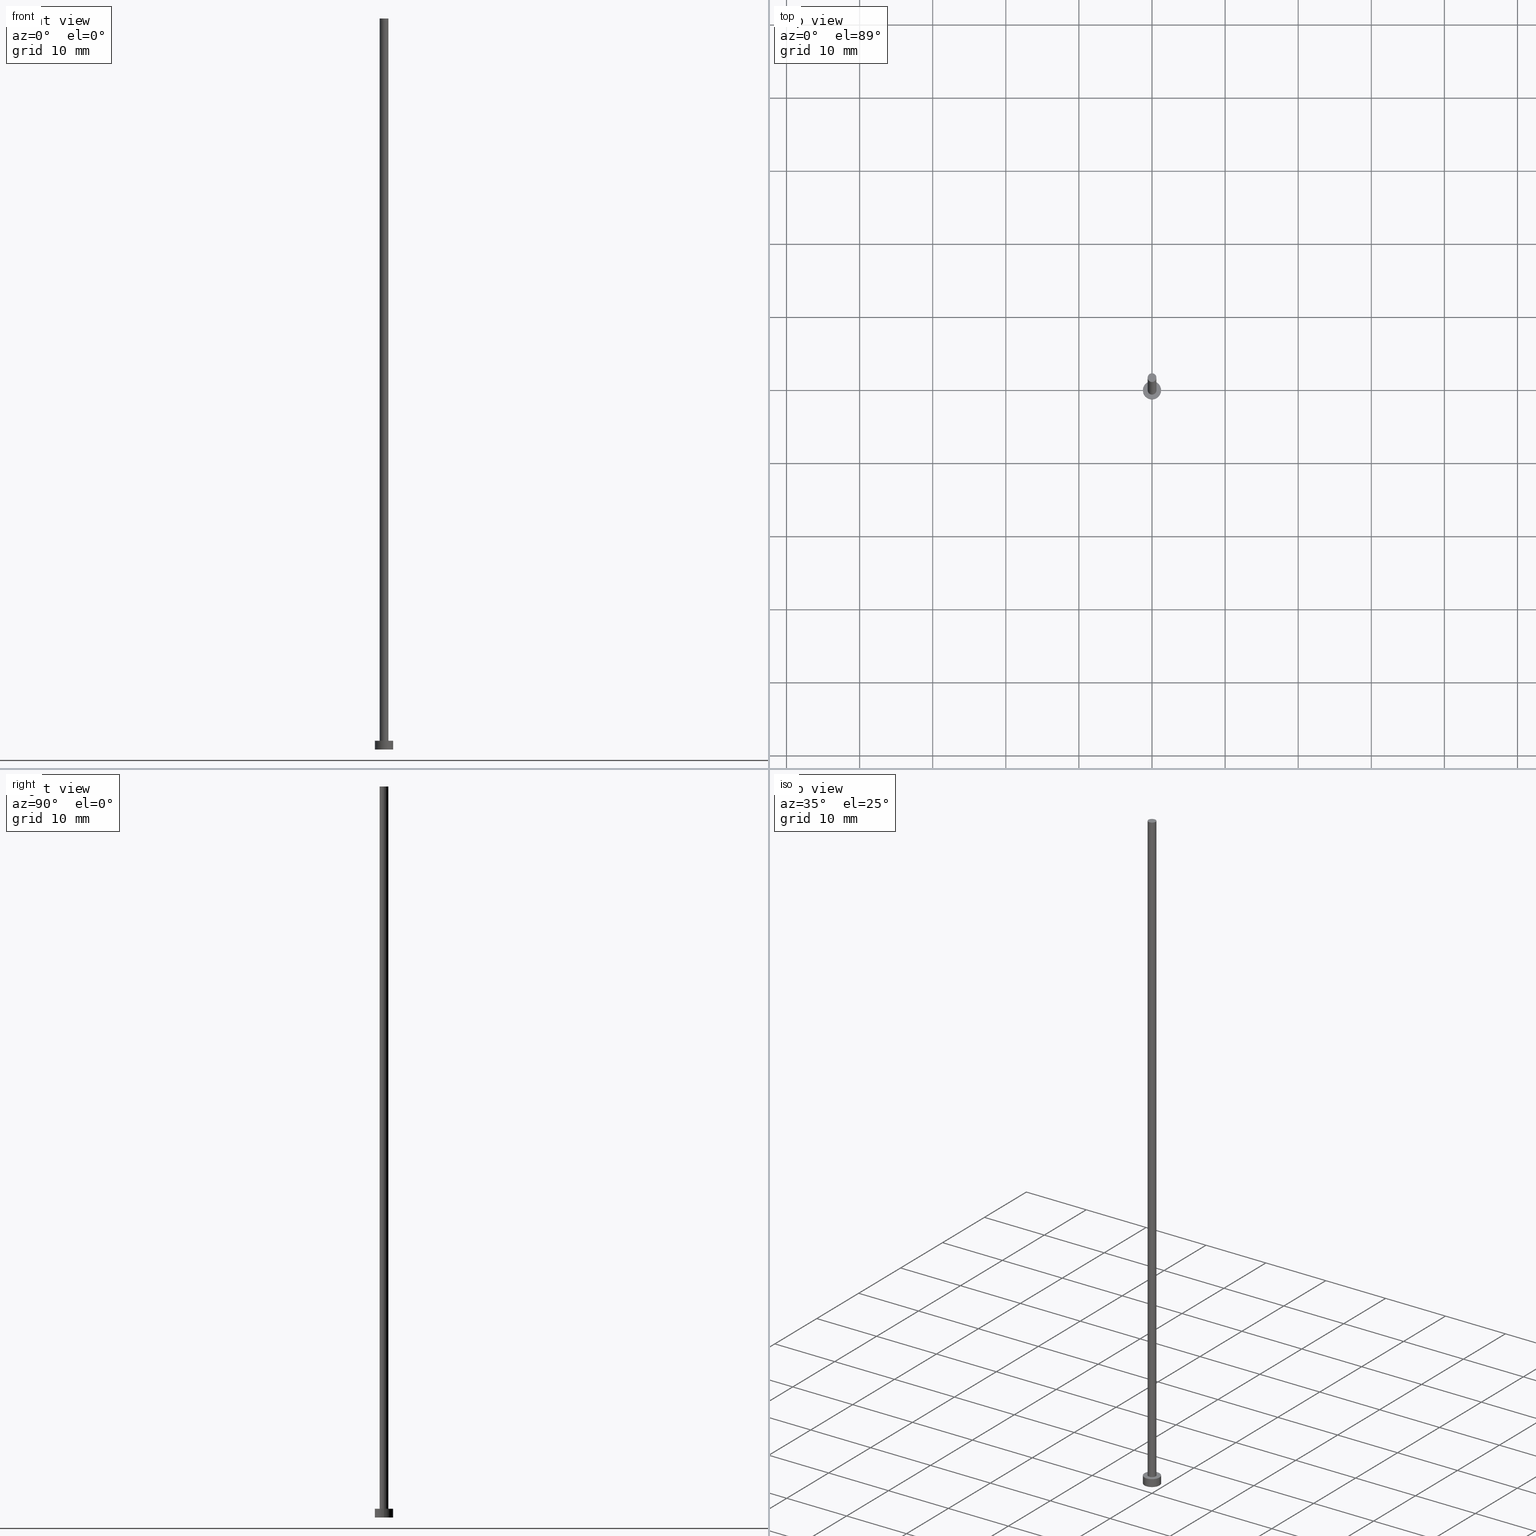
[diagram: canonical four-view strip — front | top / right | iso, engineering-drawing reading convention]
A machine part, canonical four-view strip (front | top / right | iso — engineering-drawing reading convention). The complete STEP part file that produces these views, byte-faithful:
ISO-10303-21;
HEADER;
FILE_DESCRIPTION (( 'STEP AP203' ),
    '1' );
FILE_NAME ('dd46.STEP',
    '2023-02-13T15:27:06',
    ( '' ),
    ( '' ),
    'SwSTEP 2.0',
    'SolidWorks 2019',
    '' );
FILE_SCHEMA (( 'CONFIG_CONTROL_DESIGN' ));
ENDSEC;

DATA;
#1 = APPLICATION_PROTOCOL_DEFINITION ( 'international standard', 'config_control_design', 1994, #155 ) ;
#2 = PERSON_AND_ORGANIZATION ( #152, #169 ) ;
#3 = AXIS2_PLACEMENT_3D ( 'NONE', #176, #193, #38 ) ;
#4 = CYLINDRICAL_SURFACE ( 'NONE', #241, 0.5999999999999999778 ) ;
#5 = CARTESIAN_POINT ( 'NONE',  ( 0.000000000000000000, 0.000000000000000000, 1.199999999999999956 ) ) ;
#6 = ORIENTED_EDGE ( 'NONE', *, *, #244, .T. ) ;
#7 = ORIENTED_EDGE ( 'NONE', *, *, #133, .T. ) ;
#8 = VERTEX_POINT ( 'NONE', #203 ) ;
#9 = ORIENTED_EDGE ( 'NONE', *, *, #90, .T. ) ;
#10 = ADVANCED_FACE ( 'NONE', ( #86 ), #184, .T. ) ;
#11 = CARTESIAN_POINT ( 'NONE',  ( 0.000000000000000000, 0.000000000000000000, 1.199999999999999956 ) ) ;
#12 = PLANE ( 'NONE',  #29 ) ;
#13 = FACE_OUTER_BOUND ( 'NONE', #196, .T. ) ;
#14 = FACE_OUTER_BOUND ( 'NONE', #181, .T. ) ;
#15 = SECURITY_CLASSIFICATION_LEVEL ( 'unclassified' ) ;
#16 = CIRCLE ( 'NONE', #99, 1.250000000000000000 ) ;
#17 = CC_DESIGN_APPROVAL ( #19, ( #180 ) ) ;
#18 = DIRECTION ( 'NONE',  ( 0.000000000000000000, 0.000000000000000000, 1.000000000000000000 ) ) ;
#19 = APPROVAL ( #233, 'NEUR�EN�' ) ;
#20 = AXIS2_PLACEMENT_3D ( 'NONE', #5, #77, #150 ) ;
#21 = CALENDAR_DATE ( 2023, 13, 2 ) ;
#22 = VERTEX_POINT ( 'NONE', #143 ) ;
#23 = EDGE_CURVE ( 'NONE', #216, #119, #121, .T. ) ;
#24 = VERTEX_POINT ( 'NONE', #125 ) ;
#25 = PRODUCT_RELATED_PRODUCT_CATEGORY ( 'detail', '', ( #219 ) ) ;
#26 = DIRECTION ( 'NONE',  ( -1.000000000000000000, 0.000000000000000000, 0.000000000000000000 ) ) ;
#27 = DESIGN_CONTEXT ( 'detailed design', #195, 'design' ) ;
#28 = DIRECTION ( 'NONE',  ( 0.000000000000000000, 0.000000000000000000, 1.000000000000000000 ) ) ;
#29 = AXIS2_PLACEMENT_3D ( 'NONE', #84, #206, #249 ) ;
#30 = APPROVAL_PERSON_ORGANIZATION ( #71, #106, #116 ) ;
#31 = PLANE ( 'NONE',  #139 ) ;
#32 = CARTESIAN_POINT ( 'NONE',  ( 0.000000000000000000, 0.000000000000000000, 0.000000000000000000 ) ) ;
#33 = ADVANCED_FACE ( 'NONE', ( #144, #164 ), #31, .T. ) ;
#34 = DIRECTION ( 'NONE',  ( 0.000000000000000000, 0.000000000000000000, 1.000000000000000000 ) ) ;
#35 = PERSON_AND_ORGANIZATION ( #152, #169 ) ;
#36 = CARTESIAN_POINT ( 'NONE',  ( 0.000000000000000000, 0.000000000000000000, 100.0000000000000000 ) ) ;
#37 = COORDINATED_UNIVERSAL_TIME_OFFSET ( 1, 0, .AHEAD. ) ;
#38 = DIRECTION ( 'NONE',  ( 1.000000000000000000, 0.000000000000000000, 0.000000000000000000 ) ) ;
#39 = CARTESIAN_POINT ( 'NONE',  ( -1.250000000000000000, 0.000000000000000000, 1.199999999999999956 ) ) ;
#40 = CALENDAR_DATE ( 2023, 13, 2 ) ;
#41 = APPLICATION_PROTOCOL_DEFINITION ( 'international standard', 'config_control_design', 1994, #195 ) ;
#42 = VERTEX_POINT ( 'NONE', #190 ) ;
#43 = DATE_AND_TIME ( #151, #112 ) ;
#44 = ORIENTED_EDGE ( 'NONE', *, *, #68, .F. ) ;
#45 = EDGE_CURVE ( 'NONE', #119, #42, #223, .T. ) ;
#46 = EDGE_LOOP ( 'NONE', ( #118, #218 ) ) ;
#47 = AXIS2_PLACEMENT_3D ( 'NONE', #168, #123, #243 ) ;
#48 = CARTESIAN_POINT ( 'NONE',  ( 0.000000000000000000, 0.000000000000000000, 1.199999999999999956 ) ) ;
#49 = ORIENTED_EDGE ( 'NONE', *, *, #179, .F. ) ;
#50 = DIRECTION ( 'NONE',  ( -0.000000000000000000, -0.000000000000000000, -1.000000000000000000 ) ) ;
#51 = DIRECTION ( 'NONE',  ( -0.000000000000000000, -0.000000000000000000, -1.000000000000000000 ) ) ;
#52 = ADVANCED_FACE ( 'NONE', ( #14 ), #65, .T. ) ;
#53 = LINE ( 'NONE', #131, #221 ) ;
#54 = APPROVAL_STATUS ( 'not_yet_approved' ) ;
#55 = DATE_TIME_ROLE ( 'creation_date' ) ;
#56 = DIRECTION ( 'NONE',  ( 0.000000000000000000, 0.000000000000000000, 1.000000000000000000 ) ) ;
#57 = ORIENTED_EDGE ( 'NONE', *, *, #167, .F. ) ;
#58 = PRODUCT_DEFINITION ( 'NEZN�M�', '', #180, #27 ) ;
#59 = ORIENTED_EDGE ( 'NONE', *, *, #23, .F. ) ;
#60 = PRODUCT_DEFINITION_SHAPE ( 'NONE', 'NONE',  #58 ) ;
#61 = CYLINDRICAL_SURFACE ( 'NONE', #126, 0.5999999999999999778 ) ;
#62 = CC_DESIGN_APPROVAL ( #248, ( #58 ) ) ;
#63 = EDGE_LOOP ( 'NONE', ( #160, #224, #237, #124 ) ) ;
#64 = CARTESIAN_POINT ( 'NONE',  ( 0.000000000000000000, 0.000000000000000000, 1.199999999999999956 ) ) ;
#65 = PLANE ( 'NONE',  #47 ) ;
#66 = AXIS2_PLACEMENT_3D ( 'NONE', #211, #56, #251 ) ;
#67 = LOCAL_TIME ( 16, 27, 6.000000000000000000, #37 ) ;
#68 = EDGE_CURVE ( 'NONE', #22, #24, #204, .T. ) ;
#69 = CARTESIAN_POINT ( 'NONE',  ( 0.000000000000000000, 0.000000000000000000, 1.199999999999999956 ) ) ;
#70 = FACE_OUTER_BOUND ( 'NONE', #63, .T. ) ;
#71 = PERSON_AND_ORGANIZATION ( #152, #169 ) ;
#72 = COORDINATED_UNIVERSAL_TIME_OFFSET ( 1, 0, .AHEAD. ) ;
#73 = AXIS2_PLACEMENT_3D ( 'NONE', #48, #145, #222 ) ;
#74 = LOCAL_TIME ( 16, 27, 6.000000000000000000, #212 ) ;
#75 = ADVANCED_FACE ( 'NONE', ( #13 ), #61, .T. ) ;
#76 = DIRECTION ( 'NONE',  ( -1.000000000000000000, 0.000000000000000000, 0.000000000000000000 ) ) ;
#77 = DIRECTION ( 'NONE',  ( 0.000000000000000000, 0.000000000000000000, 1.000000000000000000 ) ) ;
#78 = EDGE_LOOP ( 'NONE', ( #98, #57 ) ) ;
#79 = ORIENTED_EDGE ( 'NONE', *, *, #90, .F. ) ;
#80 =( GEOMETRIC_REPRESENTATION_CONTEXT ( 3 ) GLOBAL_UNCERTAINTY_ASSIGNED_CONTEXT ( ( #101 ) ) GLOBAL_UNIT_ASSIGNED_CONTEXT ( ( #134, #215, #230 ) ) REPRESENTATION_CONTEXT ( 'NONE', 'WORKASPACE' ) );
#81 = ORIENTED_EDGE ( 'NONE', *, *, #167, .T. ) ;
#82 = CARTESIAN_POINT ( 'NONE',  ( 0.000000000000000000, 0.000000000000000000, 100.0000000000000000 ) ) ;
#83 = DIRECTION ( 'NONE',  ( 0.000000000000000000, 0.000000000000000000, 1.000000000000000000 ) ) ;
#84 = CARTESIAN_POINT ( 'NONE',  ( 0.000000000000000000, 0.000000000000000000, 0.000000000000000000 ) ) ;
#85 = DIRECTION ( 'NONE',  ( -0.000000000000000000, -0.000000000000000000, -1.000000000000000000 ) ) ;
#86 = FACE_OUTER_BOUND ( 'NONE', #238, .T. ) ;
#87 = COORDINATED_UNIVERSAL_TIME_OFFSET ( 1, 0, .AHEAD. ) ;
#88 = AXIS2_PLACEMENT_3D ( 'NONE', #170, #18, #232 ) ;
#89 = PERSON_AND_ORGANIZATION ( #152, #169 ) ;
#90 = EDGE_CURVE ( 'NONE', #22, #104, #110, .T. ) ;
#91 = COORDINATED_UNIVERSAL_TIME_OFFSET ( 1, 0, .AHEAD. ) ;
#92 = DATE_AND_TIME ( #111, #74 ) ;
#93 = CC_DESIGN_PERSON_AND_ORGANIZATION_ASSIGNMENT ( #254, #177, ( #58 ) ) ;
#94 = LINE ( 'NONE', #39, #246 ) ;
#95 = VECTOR ( 'NONE', #185, 1000.000000000000000 ) ;
#96 = CC_DESIGN_APPROVAL ( #106, ( #186 ) ) ;
#97 = APPROVAL_DATE_TIME ( #174, #248 ) ;
#98 = ORIENTED_EDGE ( 'NONE', *, *, #122, .F. ) ;
#99 = AXIS2_PLACEMENT_3D ( 'NONE', #32, #83, #165 ) ;
#100 = EDGE_LOOP ( 'NONE', ( #79, #137, #81, #49 ) ) ;
#101 = UNCERTAINTY_MEASURE_WITH_UNIT (LENGTH_MEASURE( 1.000000000000000082E-05 ), #134, 'distance_accuracy_value', 'NONE');
#102 = DIRECTION ( 'NONE',  ( 1.000000000000000000, 0.000000000000000000, 0.000000000000000000 ) ) ;
#103 = CARTESIAN_POINT ( 'NONE',  ( 1.250000000000000000, 1.530808498934191571E-16, 1.199999999999999956 ) ) ;
#104 = VERTEX_POINT ( 'NONE', #227 ) ;
#105 = CYLINDRICAL_SURFACE ( 'NONE', #213, 1.250000000000000000 ) ;
#106 = APPROVAL ( #54, 'NEUR�EN�' ) ;
#107 = CIRCLE ( 'NONE', #3, 0.5999999999999999778 ) ;
#108 = CARTESIAN_POINT ( 'NONE',  ( 0.000000000000000000, 0.000000000000000000, 100.0000000000000000 ) ) ;
#109 = DATE_AND_TIME ( #173, #67 ) ;
#110 = CIRCLE ( 'NONE', #73, 1.250000000000000000 ) ;
#111 = CALENDAR_DATE ( 2023, 13, 2 ) ;
#112 = LOCAL_TIME ( 16, 27, 6.000000000000000000, #72 ) ;
#113 = PERSON_AND_ORGANIZATION_ROLE ( 'design_owner' ) ;
#114 = APPROVAL_DATE_TIME ( #92, #106 ) ;
#115 = MECHANICAL_CONTEXT ( 'NONE', #155, 'mechanical' ) ;
#116 = APPROVAL_ROLE ( '' ) ;
#117 = APPROVAL_STATUS ( 'not_yet_approved' ) ;
#118 = ORIENTED_EDGE ( 'NONE', *, *, #133, .F. ) ;
#119 = VERTEX_POINT ( 'NONE', #166 ) ;
#120 = ADVANCED_FACE ( 'NONE', ( #127 ), #12, .F. ) ;
#121 = CIRCLE ( 'NONE', #250, 0.5999999999999999778 ) ;
#122 = EDGE_CURVE ( 'NONE', #8, #24, #16, .T. ) ;
#123 = DIRECTION ( 'NONE',  ( 0.000000000000000000, 0.000000000000000000, 1.000000000000000000 ) ) ;
#124 = ORIENTED_EDGE ( 'NONE', *, *, #149, .F. ) ;
#125 = CARTESIAN_POINT ( 'NONE',  ( 1.250000000000000000, 1.530808498934191571E-16, 0.000000000000000000 ) ) ;
#126 = AXIS2_PLACEMENT_3D ( 'NONE', #108, #51, #142 ) ;
#127 = FACE_OUTER_BOUND ( 'NONE', #78, .T. ) ;
#128 = AXIS2_PLACEMENT_3D ( 'NONE', #234, #138, #136 ) ;
#129 = CIRCLE ( 'NONE', #66, 1.250000000000000000 ) ;
#130 = APPROVAL_PERSON_ORGANIZATION ( #172, #248, #197 ) ;
#131 = CARTESIAN_POINT ( 'NONE',  ( -0.5999999999999999778, 0.000000000000000000, 100.0000000000000000 ) ) ;
#132 = PERSON_AND_ORGANIZATION ( #152, #169 ) ;
#133 = EDGE_CURVE ( 'NONE', #198, #42, #158, .T. ) ;
#134 =( LENGTH_UNIT ( ) NAMED_UNIT ( * ) SI_UNIT ( .MILLI., .METRE. ) );
#135 = APPROVAL_DATE_TIME ( #109, #19 ) ;
#136 = DIRECTION ( 'NONE',  ( 1.000000000000000000, 0.000000000000000000, 0.000000000000000000 ) ) ;
#137 = ORIENTED_EDGE ( 'NONE', *, *, #68, .T. ) ;
#138 = DIRECTION ( 'NONE',  ( 0.000000000000000000, 0.000000000000000000, 1.000000000000000000 ) ) ;
#139 = AXIS2_PLACEMENT_3D ( 'NONE', #69, #34, #242 ) ;
#140 = ADVANCED_FACE ( 'NONE', ( #245 ), #105, .T. ) ;
#141 = ORIENTED_EDGE ( 'NONE', *, *, #45, .F. ) ;
#142 = DIRECTION ( 'NONE',  ( -1.000000000000000000, 0.000000000000000000, 0.000000000000000000 ) ) ;
#143 = CARTESIAN_POINT ( 'NONE',  ( 1.250000000000000000, 1.530808498934191571E-16, 1.199999999999999956 ) ) ;
#144 = FACE_BOUND ( 'NONE', #46, .T. ) ;
#145 = DIRECTION ( 'NONE',  ( 0.000000000000000000, 0.000000000000000000, 1.000000000000000000 ) ) ;
#146 = AXIS2_PLACEMENT_3D ( 'NONE', #64, #202, #102 ) ;
#147 = LOCAL_TIME ( 16, 27, 6.000000000000000000, #87 ) ;
#148 = CARTESIAN_POINT ( 'NONE',  ( 0.5999999999999999778, 7.347880794884117764E-17, 100.0000000000000000 ) ) ;
#149 = EDGE_CURVE ( 'NONE', #216, #198, #53, .T. ) ;
#150 = DIRECTION ( 'NONE',  ( 1.000000000000000000, 0.000000000000000000, 0.000000000000000000 ) ) ;
#151 = CALENDAR_DATE ( 2023, 13, 2 ) ;
#152 = PERSON ( 'NEUR�EN�', 'NEUR�EN�', 'NEUR�EN�', ('NEUR�EN�'), ('NEUR�EN�'), ('NEUR�EN�') ) ;
#153 = PERSON_AND_ORGANIZATION ( #152, #169 ) ;
#154 = CLOSED_SHELL ( 'NONE', ( #217, #140, #10, #33, #120, #75, #52 ) ) ;
#155 = APPLICATION_CONTEXT ( 'configuration controlled 3d designs of mechanical parts and assemblies' ) ;
#156 = CARTESIAN_POINT ( 'NONE',  ( -0.5999999999999999778, 0.000000000000000000, 100.0000000000000000 ) ) ;
#157 = ORIENTED_EDGE ( 'NONE', *, *, #122, .T. ) ;
#158 = CIRCLE ( 'NONE', #146, 0.5999999999999999778 ) ;
#159 = CC_DESIGN_SECURITY_CLASSIFICATION ( #186, ( #180 ) ) ;
#160 = ORIENTED_EDGE ( 'NONE', *, *, #255, .F. ) ;
#161 = ORIENTED_EDGE ( 'NONE', *, *, #23, .T. ) ;
#162 = CC_DESIGN_PERSON_AND_ORGANIZATION_ASSIGNMENT ( #2, #231, ( #180 ) ) ;
#163 = VECTOR ( 'NONE', #50, 1000.000000000000000 ) ;
#164 = FACE_OUTER_BOUND ( 'NONE', #201, .T. ) ;
#165 = DIRECTION ( 'NONE',  ( 1.000000000000000000, 0.000000000000000000, 0.000000000000000000 ) ) ;
#166 = CARTESIAN_POINT ( 'NONE',  ( 0.5999999999999999778, 7.347880794884117764E-17, 100.0000000000000000 ) ) ;
#167 = EDGE_CURVE ( 'NONE', #24, #8, #129, .T. ) ;
#168 = CARTESIAN_POINT ( 'NONE',  ( 0.000000000000000000, 0.000000000000000000, 100.0000000000000000 ) ) ;
#169 = ORGANIZATION ( 'NEUR�EN�', 'NEUR�EN�', '' ) ;
#170 = CARTESIAN_POINT ( 'NONE',  ( 0.000000000000000000, 0.000000000000000000, 0.000000000000000000 ) ) ;
#171 = DATE_AND_TIME ( #40, #147 ) ;
#172 = PERSON_AND_ORGANIZATION ( #152, #169 ) ;
#173 = CALENDAR_DATE ( 2023, 13, 2 ) ;
#174 = DATE_AND_TIME ( #21, #228 ) ;
#175 = DATE_TIME_ROLE ( 'classification_date' ) ;
#176 = CARTESIAN_POINT ( 'NONE',  ( 0.000000000000000000, 0.000000000000000000, 1.199999999999999956 ) ) ;
#177 = PERSON_AND_ORGANIZATION_ROLE ( 'creator' ) ;
#178 = ORIENTED_EDGE ( 'NONE', *, *, #149, .T. ) ;
#179 = EDGE_CURVE ( 'NONE', #104, #8, #94, .T. ) ;
#180 = PRODUCT_DEFINITION_FORMATION_WITH_SPECIFIED_SOURCE ( 'LIBOVOLN�', '', #219, .NOT_KNOWN. ) ;
#181 = EDGE_LOOP ( 'NONE', ( #161, #200 ) ) ;
#182 = ORIENTED_EDGE ( 'NONE', *, *, #179, .T. ) ;
#183 = CC_DESIGN_DATE_AND_TIME_ASSIGNMENT ( #43, #55, ( #58 ) ) ;
#184 = CYLINDRICAL_SURFACE ( 'NONE', #226, 1.250000000000000000 ) ;
#185 = DIRECTION ( 'NONE',  ( -0.000000000000000000, -0.000000000000000000, -1.000000000000000000 ) ) ;
#186 = SECURITY_CLASSIFICATION ( '', '', #15 ) ;
#187 = CC_DESIGN_PERSON_AND_ORGANIZATION_ASSIGNMENT ( #89, #113, ( #219 ) ) ;
#188 = DIRECTION ( 'NONE',  ( 1.000000000000000000, 0.000000000000000000, 0.000000000000000000 ) ) ;
#189 = CARTESIAN_POINT ( 'NONE',  ( 0.000000000000000000, 0.000000000000000000, 1.199999999999999956 ) ) ;
#190 = CARTESIAN_POINT ( 'NONE',  ( 0.5999999999999999778, 7.347880794884117764E-17, 1.199999999999999956 ) ) ;
#191 = PERSON_AND_ORGANIZATION_ROLE ( 'creator' ) ;
#192 = SHAPE_DEFINITION_REPRESENTATION ( #60, #247 ) ;
#193 = DIRECTION ( 'NONE',  ( 0.000000000000000000, 0.000000000000000000, 1.000000000000000000 ) ) ;
#194 = MANIFOLD_SOLID_BREP ( 'P�idat vysunut�m3', #154 ) ;
#195 = APPLICATION_CONTEXT ( 'configuration controlled 3d designs of mechanical parts and assemblies' ) ;
#196 = EDGE_LOOP ( 'NONE', ( #141, #59, #178, #7 ) ) ;
#197 = APPROVAL_ROLE ( '' ) ;
#198 = VERTEX_POINT ( 'NONE', #235 ) ;
#199 = DIRECTION ( 'NONE',  ( -0.000000000000000000, -0.000000000000000000, -1.000000000000000000 ) ) ;
#200 = ORIENTED_EDGE ( 'NONE', *, *, #255, .T. ) ;
#201 = EDGE_LOOP ( 'NONE', ( #6, #9 ) ) ;
#202 = DIRECTION ( 'NONE',  ( 0.000000000000000000, 0.000000000000000000, 1.000000000000000000 ) ) ;
#203 = CARTESIAN_POINT ( 'NONE',  ( -1.250000000000000000, 0.000000000000000000, 0.000000000000000000 ) ) ;
#204 = LINE ( 'NONE', #103, #95 ) ;
#205 = CC_DESIGN_DATE_AND_TIME_ASSIGNMENT ( #171, #175, ( #186 ) ) ;
#206 = DIRECTION ( 'NONE',  ( 0.000000000000000000, 0.000000000000000000, 1.000000000000000000 ) ) ;
#207 = CIRCLE ( 'NONE', #20, 1.250000000000000000 ) ;
#208 = APPROVAL_PERSON_ORGANIZATION ( #153, #19, #210 ) ;
#209 = DIRECTION ( 'NONE',  ( -0.000000000000000000, -0.000000000000000000, -1.000000000000000000 ) ) ;
#210 = APPROVAL_ROLE ( '' ) ;
#211 = CARTESIAN_POINT ( 'NONE',  ( 0.000000000000000000, 0.000000000000000000, 0.000000000000000000 ) ) ;
#212 = COORDINATED_UNIVERSAL_TIME_OFFSET ( 1, 0, .AHEAD. ) ;
#213 = AXIS2_PLACEMENT_3D ( 'NONE', #189, #85, #229 ) ;
#214 = EDGE_CURVE ( 'NONE', #42, #198, #107, .T. ) ;
#215 =( NAMED_UNIT ( * ) PLANE_ANGLE_UNIT ( ) SI_UNIT ( $, .RADIAN. ) );
#216 = VERTEX_POINT ( 'NONE', #156 ) ;
#217 = ADVANCED_FACE ( 'NONE', ( #70 ), #4, .T. ) ;
#218 = ORIENTED_EDGE ( 'NONE', *, *, #214, .F. ) ;
#219 = PRODUCT ( 'dd46', 'dd46', '', ( #115 ) ) ;
#220 = ORIENTED_EDGE ( 'NONE', *, *, #244, .F. ) ;
#221 = VECTOR ( 'NONE', #209, 1000.000000000000000 ) ;
#222 = DIRECTION ( 'NONE',  ( 1.000000000000000000, 0.000000000000000000, 0.000000000000000000 ) ) ;
#223 = LINE ( 'NONE', #148, #163 ) ;
#224 = ORIENTED_EDGE ( 'NONE', *, *, #45, .T. ) ;
#225 = CC_DESIGN_PERSON_AND_ORGANIZATION_ASSIGNMENT ( #132, #252, ( #186 ) ) ;
#226 = AXIS2_PLACEMENT_3D ( 'NONE', #11, #239, #26 ) ;
#227 = CARTESIAN_POINT ( 'NONE',  ( -1.250000000000000000, 0.000000000000000000, 1.199999999999999956 ) ) ;
#228 = LOCAL_TIME ( 16, 27, 6.000000000000000000, #91 ) ;
#229 = DIRECTION ( 'NONE',  ( -1.000000000000000000, 0.000000000000000000, 0.000000000000000000 ) ) ;
#230 =( NAMED_UNIT ( * ) SI_UNIT ( $, .STERADIAN. ) SOLID_ANGLE_UNIT ( ) );
#231 = PERSON_AND_ORGANIZATION_ROLE ( 'design_supplier' ) ;
#232 = DIRECTION ( 'NONE',  ( 1.000000000000000000, 0.000000000000000000, 0.000000000000000000 ) ) ;
#233 = APPROVAL_STATUS ( 'not_yet_approved' ) ;
#234 = CARTESIAN_POINT ( 'NONE',  ( 0.000000000000000000, 0.000000000000000000, 100.0000000000000000 ) ) ;
#235 = CARTESIAN_POINT ( 'NONE',  ( -0.5999999999999999778, 0.000000000000000000, 1.199999999999999956 ) ) ;
#236 = DIRECTION ( 'NONE',  ( -0.000000000000000000, -0.000000000000000000, -1.000000000000000000 ) ) ;
#237 = ORIENTED_EDGE ( 'NONE', *, *, #214, .T. ) ;
#238 = EDGE_LOOP ( 'NONE', ( #44, #220, #182, #157 ) ) ;
#239 = DIRECTION ( 'NONE',  ( -0.000000000000000000, -0.000000000000000000, -1.000000000000000000 ) ) ;
#240 = CIRCLE ( 'NONE', #128, 0.5999999999999999778 ) ;
#241 = AXIS2_PLACEMENT_3D ( 'NONE', #36, #199, #76 ) ;
#242 = DIRECTION ( 'NONE',  ( 1.000000000000000000, 0.000000000000000000, -0.000000000000000000 ) ) ;
#243 = DIRECTION ( 'NONE',  ( 1.000000000000000000, 0.000000000000000000, -0.000000000000000000 ) ) ;
#244 = EDGE_CURVE ( 'NONE', #104, #22, #207, .T. ) ;
#245 = FACE_OUTER_BOUND ( 'NONE', #100, .T. ) ;
#246 = VECTOR ( 'NONE', #236, 1000.000000000000000 ) ;
#247 = ADVANCED_BREP_SHAPE_REPRESENTATION ( 'dd46', ( #194, #88 ), #80 ) ;
#248 = APPROVAL ( #117, 'NEUR�EN�' ) ;
#249 = DIRECTION ( 'NONE',  ( 1.000000000000000000, 0.000000000000000000, -0.000000000000000000 ) ) ;
#250 = AXIS2_PLACEMENT_3D ( 'NONE', #82, #28, #188 ) ;
#251 = DIRECTION ( 'NONE',  ( 1.000000000000000000, 0.000000000000000000, 0.000000000000000000 ) ) ;
#252 = PERSON_AND_ORGANIZATION_ROLE ( 'classification_officer' ) ;
#253 = CC_DESIGN_PERSON_AND_ORGANIZATION_ASSIGNMENT ( #35, #191, ( #180 ) ) ;
#254 = PERSON_AND_ORGANIZATION ( #152, #169 ) ;
#255 = EDGE_CURVE ( 'NONE', #119, #216, #240, .T. ) ;
ENDSEC;
END-ISO-10303-21;
